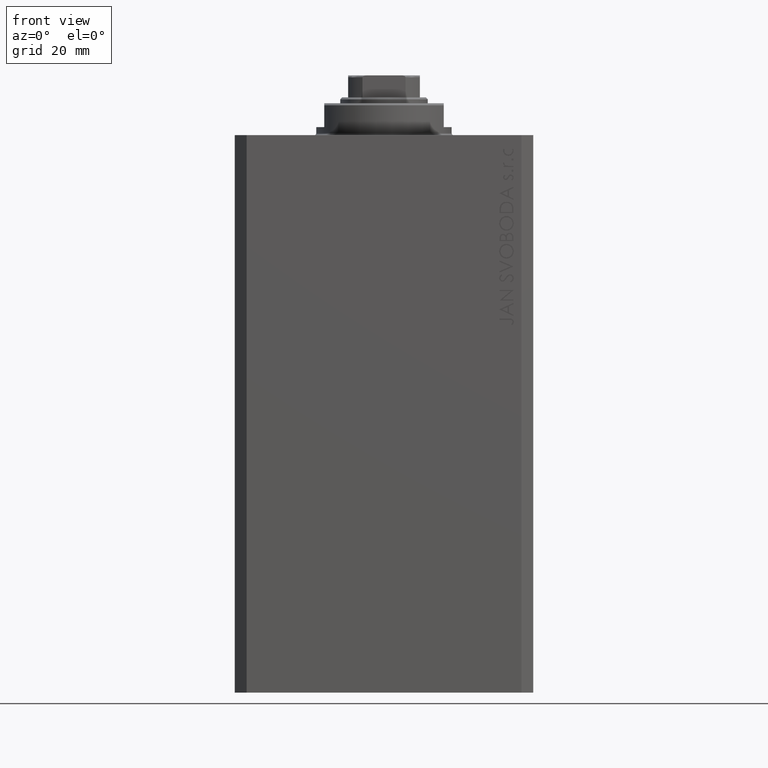
[diagram: clean part render]
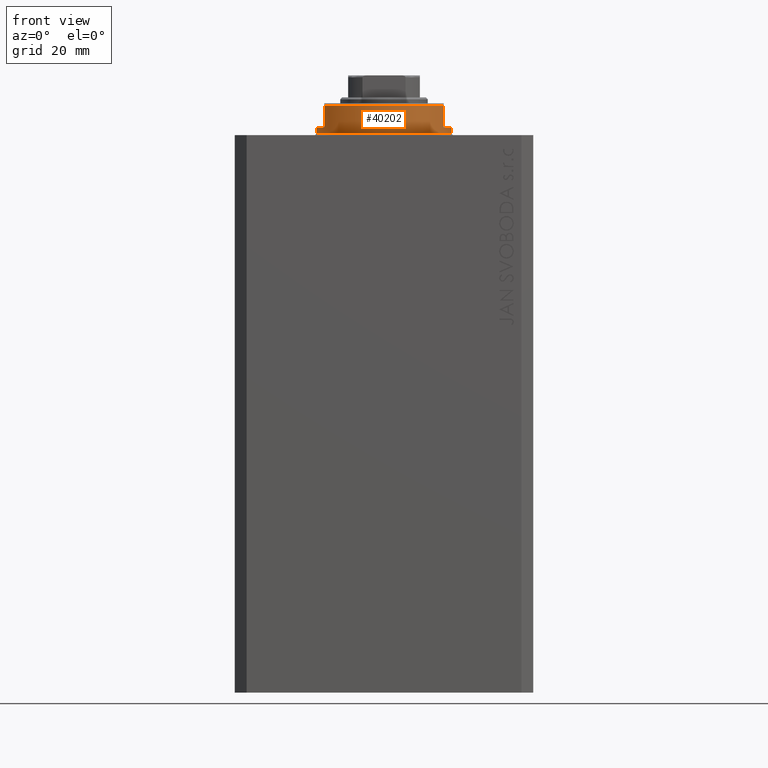
[diagram: same view with one face highlighted and labeled with its STEP entity id]
A machine part, front view. The second image highlights one B-rep face of the part: STEP entity #40202.
In plain terms, the highlighted cylindrical surface (partial cylindrical patch) has radius 17 mm, axis along (0, 0, -1).
Its self-contained STEP definition (entity closure, byte-faithful):
#57 = CARTESIAN_POINT ( 'NONE',  ( -17.00000000000000000, 2.081899558550500280E-15, -0.5000000000000004441 ) ) ;
#1069 = ORIENTED_EDGE ( 'NONE', *, *, #41495, .F. ) ;
#1492 = VERTEX_POINT ( 'NONE', #7548 ) ;
#2318 = LINE ( 'NONE', #13761, #6369 ) ;
#2387 = DIRECTION ( 'NONE',  ( 0.000000000000000000, 0.000000000000000000, 1.000000000000000000 ) ) ;
#3815 = AXIS2_PLACEMENT_3D ( 'NONE', #16250, #2387, #42033 ) ;
#3902 = CARTESIAN_POINT ( 'NONE',  ( -15.00000000000000000, -8.000000000000001776, -8.000000000000000000 ) ) ;
#4316 = DIRECTION ( 'NONE',  ( 0.000000000000000000, 0.000000000000000000, -1.000000000000000000 ) ) ;
#4862 = EDGE_CURVE ( 'NONE', #23033, #21014, #46493, .T. ) ;
#5061 = EDGE_LOOP ( 'NONE', ( #21030, #24012, #22733, #23774, #13396, #1069, #28474, #8278 ) ) ;
#6080 = EDGE_CURVE ( 'NONE', #12904, #11456, #35229, .T. ) ;
#6369 = VECTOR ( 'NONE', #35017, 1000.000000000000000 ) ;
#6503 = AXIS2_PLACEMENT_3D ( 'NONE', #26282, #4316, #8833 ) ;
#7548 = CARTESIAN_POINT ( 'NONE',  ( 14.99999999999999645, -8.000000000000003553, -2.000000000000000000 ) ) ;
#7913 = DIRECTION ( 'NONE',  ( 0.000000000000000000, 0.000000000000000000, -1.000000000000000000 ) ) ;
#8278 = ORIENTED_EDGE ( 'NONE', *, *, #38638, .T. ) ;
#8833 = DIRECTION ( 'NONE',  ( -1.000000000000000000, 0.000000000000000000, 0.000000000000000000 ) ) ;
#9021 = DIRECTION ( 'NONE',  ( -0.000000000000000000, -0.000000000000000000, -1.000000000000000000 ) ) ;
#10824 = DIRECTION ( 'NONE',  ( 0.000000000000000000, 0.000000000000000000, -1.000000000000000000 ) ) ;
#11456 = VERTEX_POINT ( 'NONE', #57 ) ;
#11848 = CIRCLE ( 'NONE', #6503, 17.00000000000000000 ) ;
#12112 = VECTOR ( 'NONE', #35711, 1000.000000000000000 ) ;
#12904 = VERTEX_POINT ( 'NONE', #36242 ) ;
#13396 = ORIENTED_EDGE ( 'NONE', *, *, #37673, .F. ) ;
#13400 = EDGE_CURVE ( 'NONE', #17140, #12904, #40237, .T. ) ;
#13761 = CARTESIAN_POINT ( 'NONE',  ( 15.00000000000000000, -8.000000000000001776, -8.000000000000000000 ) ) ;
#14092 = AXIS2_PLACEMENT_3D ( 'NONE', #37570, #16081, #30653 ) ;
#16081 = DIRECTION ( 'NONE',  ( -0.000000000000000000, -0.000000000000000000, 1.000000000000000000 ) ) ;
#16250 = CARTESIAN_POINT ( 'NONE',  ( 0.000000000000000000, 0.000000000000000000, -7.500000000000007105 ) ) ;
#16305 = CIRCLE ( 'NONE', #21618, 17.00000000000000000 ) ;
#16309 = CYLINDRICAL_SURFACE ( 'NONE', #14092, 17.00000000000000000 ) ;
#16415 = DIRECTION ( 'NONE',  ( 1.000000000000000000, 0.000000000000000000, 0.000000000000000000 ) ) ;
#16987 = CARTESIAN_POINT ( 'NONE',  ( 17.00000000000000000, 0.000000000000000000, -0.5000000000000004441 ) ) ;
#17070 = CARTESIAN_POINT ( 'NONE',  ( -17.00000000000000000, 2.081899558550500280E-15, -8.000000000000000000 ) ) ;
#17140 = VERTEX_POINT ( 'NONE', #39930 ) ;
#18854 = CARTESIAN_POINT ( 'NONE',  ( 17.00000000000000000, 0.000000000000000000, -2.000000000000000000 ) ) ;
#18884 = VECTOR ( 'NONE', #20941, 1000.000000000000000 ) ;
#20941 = DIRECTION ( 'NONE',  ( -0.000000000000000000, -0.000000000000000000, 1.000000000000000000 ) ) ;
#21014 = VERTEX_POINT ( 'NONE', #16987 ) ;
#21030 = ORIENTED_EDGE ( 'NONE', *, *, #6080, .F. ) ;
#21618 = AXIS2_PLACEMENT_3D ( 'NONE', #41735, #9021, #16415 ) ;
#22733 = ORIENTED_EDGE ( 'NONE', *, *, #28123, .T. ) ;
#23033 = VERTEX_POINT ( 'NONE', #18854 ) ;
#23453 = AXIS2_PLACEMENT_3D ( 'NONE', #29636, #7913, #40145 ) ;
#23646 = CARTESIAN_POINT ( 'NONE',  ( -15.00000000000000000, -8.000000000000001776, -7.500000000000007105 ) ) ;
#23735 = VECTOR ( 'NONE', #10824, 1000.000000000000000 ) ;
#23774 = ORIENTED_EDGE ( 'NONE', *, *, #25443, .T. ) ;
#24012 = ORIENTED_EDGE ( 'NONE', *, *, #13400, .F. ) ;
#25142 = CIRCLE ( 'NONE', #3815, 17.00000000000000000 ) ;
#25443 = EDGE_CURVE ( 'NONE', #35719, #33237, #25142, .T. ) ;
#26282 = CARTESIAN_POINT ( 'NONE',  ( 0.000000000000000000, 0.000000000000000000, -2.000000000000000000 ) ) ;
#27322 = CARTESIAN_POINT ( 'NONE',  ( 15.00000000000000000, -8.000000000000001776, -7.500000000000007105 ) ) ;
#28123 = EDGE_CURVE ( 'NONE', #17140, #35719, #40670, .T. ) ;
#28474 = ORIENTED_EDGE ( 'NONE', *, *, #4862, .T. ) ;
#29636 = CARTESIAN_POINT ( 'NONE',  ( 0.000000000000000000, 0.000000000000000000, -2.000000000000000000 ) ) ;
#30653 = DIRECTION ( 'NONE',  ( 1.000000000000000000, 0.000000000000000000, 0.000000000000000000 ) ) ;
#33237 = VERTEX_POINT ( 'NONE', #27322 ) ;
#35017 = DIRECTION ( 'NONE',  ( 0.000000000000000000, 0.000000000000000000, -1.000000000000000000 ) ) ;
#35229 = LINE ( 'NONE', #17070, #12112 ) ;
#35711 = DIRECTION ( 'NONE',  ( -0.000000000000000000, -0.000000000000000000, 1.000000000000000000 ) ) ;
#35719 = VERTEX_POINT ( 'NONE', #23646 ) ;
#36242 = CARTESIAN_POINT ( 'NONE',  ( -17.00000000000000000, 2.081899558550500280E-15, -2.000000000000000000 ) ) ;
#37570 = CARTESIAN_POINT ( 'NONE',  ( 0.000000000000000000, 0.000000000000000000, -8.000000000000000000 ) ) ;
#37673 = EDGE_CURVE ( 'NONE', #1492, #33237, #2318, .T. ) ;
#38638 = EDGE_CURVE ( 'NONE', #21014, #11456, #16305, .T. ) ;
#39564 = CARTESIAN_POINT ( 'NONE',  ( 17.00000000000000000, 0.000000000000000000, -8.000000000000000000 ) ) ;
#39930 = CARTESIAN_POINT ( 'NONE',  ( -14.99999999999999645, -8.000000000000003553, -2.000000000000000000 ) ) ;
#40145 = DIRECTION ( 'NONE',  ( -1.000000000000000000, 0.000000000000000000, 0.000000000000000000 ) ) ;
#40202 = ADVANCED_FACE ( 'NONE', ( #45202 ), #16309, .T. ) ;
#40237 = CIRCLE ( 'NONE', #23453, 17.00000000000000000 ) ;
#40670 = LINE ( 'NONE', #3902, #23735 ) ;
#41495 = EDGE_CURVE ( 'NONE', #23033, #1492, #11848, .T. ) ;
#41735 = CARTESIAN_POINT ( 'NONE',  ( 0.000000000000000000, 0.000000000000000000, -0.5000000000000004441 ) ) ;
#42033 = DIRECTION ( 'NONE',  ( -1.000000000000000000, 0.000000000000000000, 0.000000000000000000 ) ) ;
#45202 = FACE_OUTER_BOUND ( 'NONE', #5061, .T. ) ;
#46493 = LINE ( 'NONE', #39564, #18884 ) ;